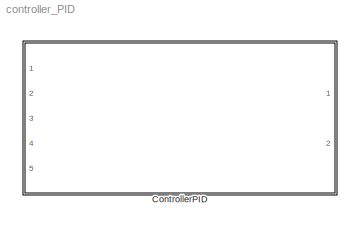
MODEL controller_PID
KIND model
CONFIG InitFcn = % load parameters of the default quadrotor\ndisp('Quadrotor parameters loaded by InitFcn')\nmdl_quadrotor
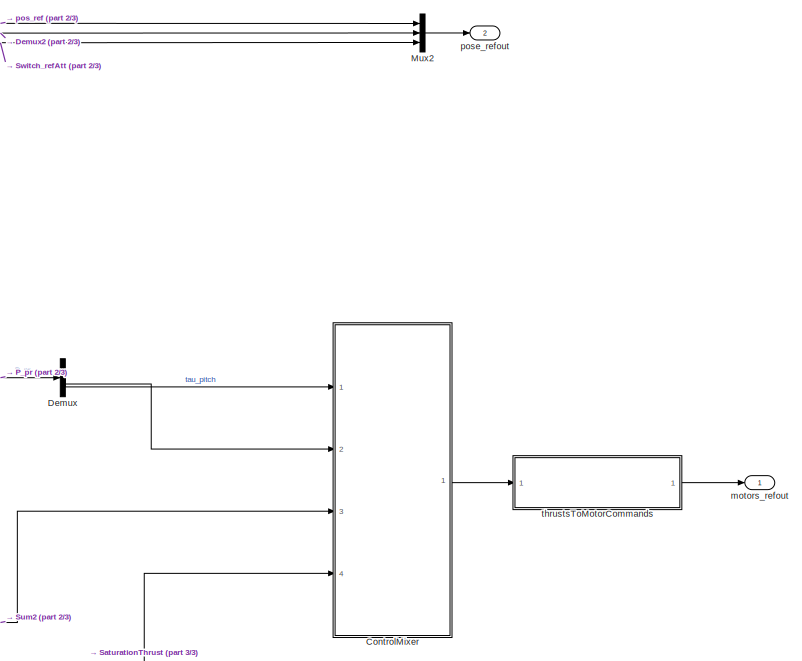
[diagram: ControllerPID - part 1/3, middle right region]
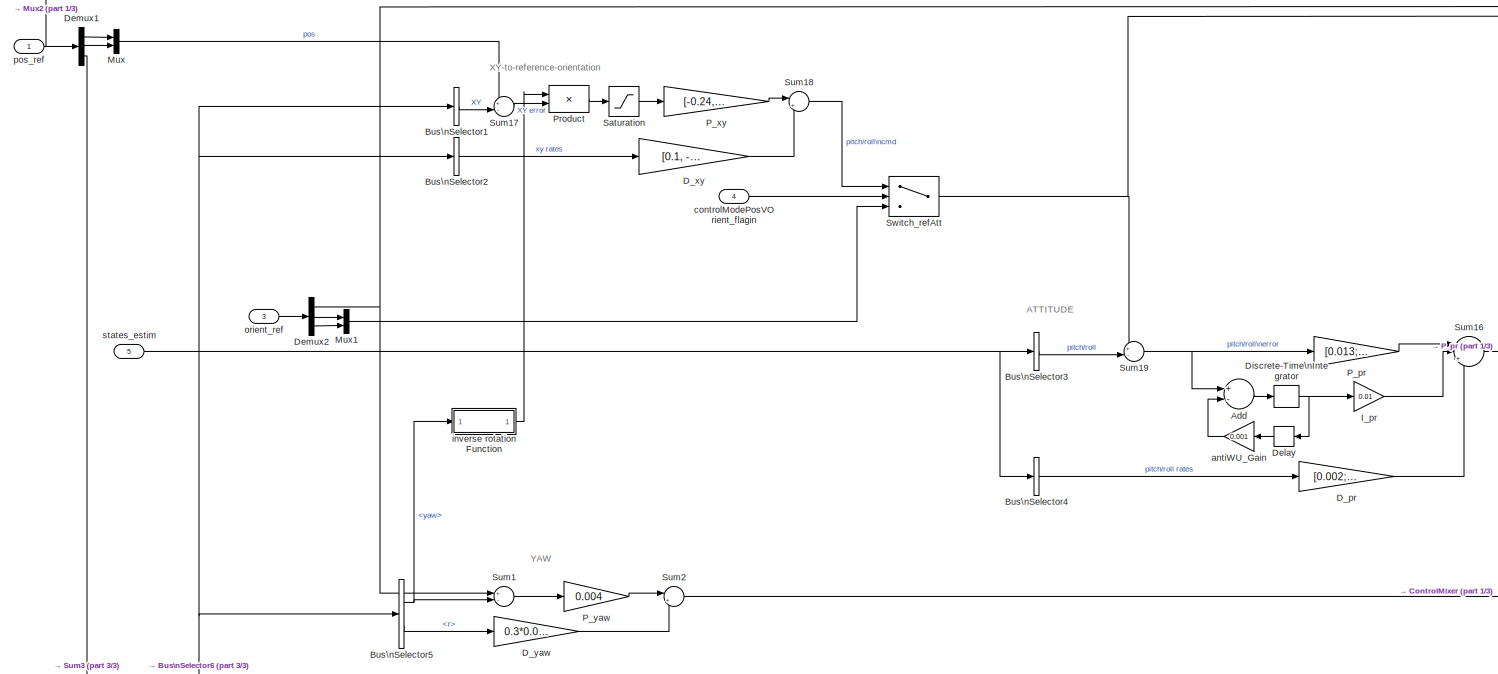
[diagram: ControllerPID - part 2/3, middle left region]
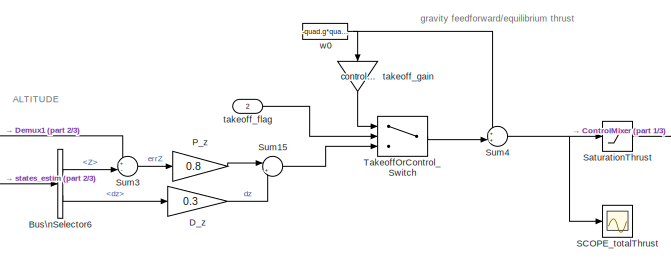
[diagram: ControllerPID - part 3/3, bottom left region]
BLOCK [SubSystem] ControllerPID
  Ports = [5, 2]
  RTWSystemCode = Reusable function
  RequestExecContextInheritance = off
  SID = 5863
  TreatAsAtomicUnit = on
BLOCK [Sum] ControllerPID/Add
  InputSameDT = off
  Inputs = +-
  OutDataTypeStr = Inherit: Inherit via internal rule
  Ports = [2, 1]
  SID = 5869
  SaturateOnIntegerOverflow = off
BLOCK [BusSelector] ControllerPID/Bus\nSelector1
  OutputAsBus = on
  OutputSignals = X,Y
  Ports = [1, 1]
  SID = 5870
BLOCK [BusSelector] ControllerPID/Bus\nSelector2
  OutputAsBus = on
  OutputSignals = dx,dy
  Ports = [1, 1]
  SID = 5871
BLOCK [BusSelector] ControllerPID/Bus\nSelector3
  OutputAsBus = on
  OutputSignals = pitch,roll
  Ports = [1, 1]
  SID = 5872
BLOCK [BusSelector] ControllerPID/Bus\nSelector4
  OutputAsBus = on
  OutputSignals = q,p
  Ports = [1, 1]
  SID = 5873
BLOCK [BusSelector] ControllerPID/Bus\nSelector5
  OutputSignals = yaw,r
  Ports = [1, 2]
  SID = 5874
BLOCK [BusSelector] ControllerPID/Bus\nSelector6
  OutputSignals = Z,dz
  Ports = [1, 2]
  SID = 5875
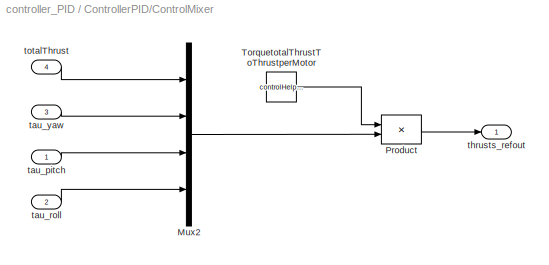
BLOCK [SubSystem] ControllerPID/ControlMixer
  Ports = [4, 1]
  RequestExecContextInheritance = off
  SID = 5876
BLOCK [Mux] ControllerPID/ControlMixer/Mux2
  DisplayOption = bar
  Ports = [4, 1]
  SID = 5881
BLOCK [Product] ControllerPID/ControlMixer/Product
  InputSameDT = off
  Multiplication = Matrix(*)
  OutDataTypeStr = Inherit: Inherit via internal rule
  Ports = [2, 1]
  SID = 5882
  SaturateOnIntegerOverflow = off
BLOCK [Constant] ControllerPID/ControlMixer/TorquetotalThrustToThrustperMotor
  SID = 5883
  Value = controlHelperParams.Q2Ts
BLOCK [Inport] ControllerPID/ControlMixer/tau_pitch
  IconDisplay = Port number
  SID = 5877
BLOCK [Inport] ControllerPID/ControlMixer/tau_roll
  IconDisplay = Port number
  Port = 2
  SID = 5878
BLOCK [Inport] ControllerPID/ControlMixer/tau_yaw
  IconDisplay = Port number
  Port = 3
  SID = 5879
BLOCK [Outport] ControllerPID/ControlMixer/thrusts_refout
  IconDisplay = Port number
  SID = 5884
BLOCK [Inport] ControllerPID/ControlMixer/totalThrust
  IconDisplay = Port number
  Port = 4
  SID = 5880
BLOCK [Gain] ControllerPID/D_pr
  Gain = [0.002;0.003]
  OutDataTypeStr = Inherit: Inherit via internal rule
  ParamDataTypeStr = Inherit: Inherit via internal rule
  SID = 5885
  SaturateOnIntegerOverflow = off
BLOCK [Gain] ControllerPID/D_xy
  Gain = [0.1, -0.1]
  OutDataTypeStr = Inherit: Inherit via internal rule
  ParamDataTypeStr = Inherit: Inherit via internal rule
  SID = 5886
  SaturateOnIntegerOverflow = off
BLOCK [Gain] ControllerPID/D_yaw
  Gain = 0.3*0.004
  OutDataTypeStr = Inherit: Inherit via internal rule
  ParamDataTypeStr = Inherit: Inherit via internal rule
  SID = 5887
  SaturateOnIntegerOverflow = off
BLOCK [Gain] ControllerPID/D_z
  Gain = 0.3
  OutDataTypeStr = Inherit: Inherit via internal rule
  ParamDataTypeStr = Inherit: Inherit via internal rule
  SID = 5888
  SaturateOnIntegerOverflow = off
BLOCK [Delay] ControllerPID/Delay
  DelayLength = 1
  InitialCondition = 0
  InputPortMap = u0
  Ports = [1, 1]
  SID = 5889
BLOCK [Demux] ControllerPID/Demux
  DisplayOption = bar
  Outputs = 2
  Ports = [1, 2]
  SID = 5890
BLOCK [Demux] ControllerPID/Demux1
  DisplayOption = bar
  Outputs = 3
  Ports = [1, 3]
  SID = 5891
BLOCK [Demux] ControllerPID/Demux2
  DisplayOption = bar
  Outputs = 3
  Ports = [1, 3]
  SID = 5892
BLOCK [DiscreteIntegrator] ControllerPID/Discrete-Time\nIntegrator
  InitialConditionSetting = State (most efficient)
  LimitOutput = on
  LowerSaturationLimit = -2
  Ports = [1, 1]
  SID = 5893
  SampleTime = quadEDT.sampletime
  UpperSaturationLimit = 2
BLOCK [Gain] ControllerPID/I_pr
  Gain = 0.01
  OutDataTypeStr = Inherit: Inherit via internal rule
  ParamDataTypeStr = Inherit: Inherit via internal rule
  SID = 5894
  SaturateOnIntegerOverflow = off
BLOCK [Mux] ControllerPID/Mux
  DisplayOption = bar
  Inputs = 2
  Ports = [2, 1]
  SID = 5895
BLOCK [Mux] ControllerPID/Mux1
  DisplayOption = bar
  Inputs = 2
  Ports = [2, 1]
  SID = 5896
BLOCK [Mux] ControllerPID/Mux2
  DisplayOption = bar
  Inputs = 3
  Ports = [3, 1]
  SID = 5897
BLOCK [Gain] ControllerPID/P_pr
  Gain = [0.013;0.02]
  OutDataTypeStr = Inherit: Inherit via internal rule
  ParamDataTypeStr = Inherit: Inherit via internal rule
  SID = 5898
  SaturateOnIntegerOverflow = off
BLOCK [Gain] ControllerPID/P_xy
  Gain = [-0.24,0.24]
  OutDataTypeStr = Inherit: Inherit via internal rule
  ParamDataTypeStr = Inherit: Inherit via internal rule
  SID = 5899
  SaturateOnIntegerOverflow = off
BLOCK [Gain] ControllerPID/P_yaw
  Gain = 0.004
  OutDataTypeStr = Inherit: Inherit via internal rule
  ParamDataTypeStr = Inherit: Inherit via internal rule
  SID = 5900
  SaturateOnIntegerOverflow = off
BLOCK [Gain] ControllerPID/P_z
  Gain = 0.8
  OutDataTypeStr = Inherit: Inherit via internal rule
  ParamDataTypeStr = Inherit: Inherit via internal rule
  SID = 5901
  SaturateOnIntegerOverflow = off
BLOCK [Product] ControllerPID/Product
  InputSameDT = off
  Multiplication = Matrix(*)
  OutDataTypeStr = Inherit: Inherit via internal rule
  Ports = [2, 1]
  SID = 5902
  SaturateOnIntegerOverflow = off
BLOCK [Scope] ControllerPID/SCOPE_totalThrust
  DataFormat = StructureWithTime
  Floating = off
  NumInputPorts = 1
  Ports = [1]
  SID = 5903
  SampleTime = 0
  SaveName = ScopeData15
  YMax = 0.045
  YMin = -0.04
  ZoomMode = yonly
BLOCK [Saturate] ControllerPID/Saturation
  InputPortMap = u0
  LowerLimit = -3
  Ports = [1, 1]
  SID = 5904
  UpperLimit = 3
BLOCK [Saturate] ControllerPID/SaturationThrust
  InputPortMap = u0
  LowerLimit = -4*controlHelperParams.totalThrust_maxRelative*controlHelperParams.motorsThrustperMotor_max
  Ports = [1, 1]
  SID = 5905
  UpperLimit = 4*controlHelperParams.totalThrust_maxRelative*controlHelperParams.motorsThrustperMotor_max
BLOCK [Sum] ControllerPID/Sum1
  IconShape = round
  InputSameDT = off
  Inputs = +-|
  OutDataTypeStr = Inherit: Inherit via internal rule
  Ports = [2, 1]
  SID = 5906
  SaturateOnIntegerOverflow = off
BLOCK [Sum] ControllerPID/Sum15
  IconShape = round
  InputSameDT = off
  Inputs = |+-
  OutDataTypeStr = Inherit: Inherit via internal rule
  Ports = [2, 1]
  SID = 5907
  SaturateOnIntegerOverflow = off
BLOCK [Sum] ControllerPID/Sum16
  IconShape = round
  InputSameDT = off
  Inputs = ||++-
  OutDataTypeStr = Inherit: Inherit via internal rule
  Ports = [3, 1]
  SID = 5908
  SaturateOnIntegerOverflow = off
BLOCK [Sum] ControllerPID/Sum17
  IconShape = round
  InputSameDT = off
  Inputs = +-|
  OutDataTypeStr = Inherit: Inherit via internal rule
  Ports = [2, 1]
  SID = 5909
  SaturateOnIntegerOverflow = off
BLOCK [Sum] ControllerPID/Sum18
  IconShape = round
  InputSameDT = off
  Inputs = |++
  OutDataTypeStr = Inherit: Inherit via internal rule
  Ports = [2, 1]
  SID = 5910
  SaturateOnIntegerOverflow = off
BLOCK [Sum] ControllerPID/Sum19
  IconShape = round
  InputSameDT = off
  Inputs = +-|
  OutDataTypeStr = Inherit: Inherit via internal rule
  Ports = [2, 1]
  SID = 5911
  SaturateOnIntegerOverflow = off
BLOCK [Sum] ControllerPID/Sum2
  IconShape = round
  InputSameDT = off
  Inputs = |+-
  OutDataTypeStr = Inherit: Inherit via internal rule
  Ports = [2, 1]
  SID = 5912
  SaturateOnIntegerOverflow = off
BLOCK [Sum] ControllerPID/Sum3
  IconShape = round
  InputSameDT = off
  Inputs = +-|
  OutDataTypeStr = Inherit: Inherit via internal rule
  Ports = [2, 1]
  SID = 5913
  SaturateOnIntegerOverflow = off
BLOCK [Sum] ControllerPID/Sum4
  IconShape = round
  InputSameDT = off
  Inputs = ++|
  OutDataTypeStr = Inherit: Inherit via internal rule
  Ports = [2, 1]
  SID = 5914
  SaturateOnIntegerOverflow = off
BLOCK [Switch] ControllerPID/Switch_refAtt
  Criteria = u2 > Threshold
  InputSameDT = off
  SID = 5915
  SaturateOnIntegerOverflow = off
BLOCK [Switch] ControllerPID/TakeoffOrControl_Switch
  Criteria = u2 > Threshold
  InputSameDT = off
  SID = 5916
  SaturateOnIntegerOverflow = off
BLOCK [Gain] ControllerPID/antiWU_Gain
  Gain = 0.001
  OutDataTypeStr = Inherit: Inherit via internal rule
  ParamDataTypeStr = Inherit: Inherit via internal rule
  SID = 5917
  SaturateOnIntegerOverflow = off
BLOCK [Inport] ControllerPID/controlModePosVOrient_flagin
  IconDisplay = Port number
  Port = 4
  SID = 5867
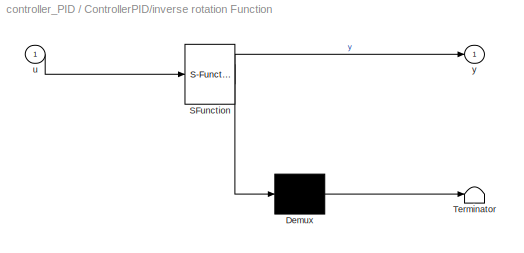
BLOCK [SubSystem] ControllerPID/inverse rotation Function
  ErrorFcn = Stateflow.Translate.translate
  PermitHierarchicalResolution = ExplicitOnly
  Ports = [1, 1]
  RequestExecContextInheritance = off
  SFBlockType = MATLAB Function
  SID = 5918
  TreatAsAtomicUnit = on
BLOCK [Demux] ControllerPID/inverse rotation Function/ Demux 
  Outputs = 1
  Ports = [1, 1]
  SID = 5918::20
BLOCK [S-Function] ControllerPID/inverse rotation Function/ SFunction 
  EnableBusSupport = on
  FunctionName = sf_sfun
  PortCounts = [1 2]
  Ports = [1, 2]
  SID = 5918::19
  Tag = Stateflow S-Function controller_PID 2
BLOCK [Terminator] ControllerPID/inverse rotation Function/ Terminator 
  SID = 5918::21
BLOCK [Inport] ControllerPID/inverse rotation Function/u
  IconDisplay = Port number
  SID = 5918::1
BLOCK [Outport] ControllerPID/inverse rotation Function/y
  IconDisplay = Port number
  SID = 5918::5
BLOCK [Outport] ControllerPID/motors_refout
  IconDisplay = Port number
  SID = 5927
BLOCK [Inport] ControllerPID/orient_ref
  IconDisplay = Port number
  Port = 3
  SID = 5866
BLOCK [Inport] ControllerPID/pos_ref
  IconDisplay = Port number
  SID = 5864
BLOCK [Outport] ControllerPID/pose_refout
  IconDisplay = Port number
  Port = 2
  SID = 5928
BLOCK [Inport] ControllerPID/states_estim
  IconDisplay = Port number
  Port = 5
  SID = 5868
BLOCK [Inport] ControllerPID/takeoff_flag
  IconDisplay = Port number
  Port = 2
  SID = 5865
BLOCK [Gain] ControllerPID/takeoff_gain
  Gain = controlHelperParams.takeoff_gain
  OutDataTypeStr = Inherit: Inherit via internal rule
  ParamDataTypeStr = Inherit: Inherit via internal rule
  SID = 5919
  SaturateOnIntegerOverflow = off
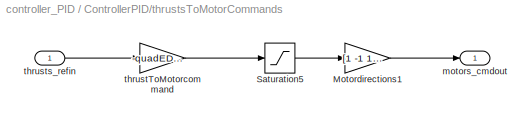
BLOCK [SubSystem] ControllerPID/thrustsToMotorCommands
  Ports = [1, 1]
  RequestExecContextInheritance = off
  SID = 5920
BLOCK [Gain] ControllerPID/thrustsToMotorCommands/Motordirections1
  Gain = [1 -1 1 -1]
  OutDataTypeStr = Inherit: Inherit via internal rule
  ParamDataTypeStr = Inherit: Inherit via internal rule
  SID = 5922
  SaturateOnIntegerOverflow = off
BLOCK [Saturate] ControllerPID/thrustsToMotorCommands/Saturation5
  InputPortMap = u0
  LowerLimit = 10
  Ports = [1, 1]
  SID = 5923
  UpperLimit = quadEDT.motors_max
BLOCK [Outport] ControllerPID/thrustsToMotorCommands/motors_cmdout
  IconDisplay = Port number
  SID = 5925
BLOCK [Gain] ControllerPID/thrustsToMotorCommands/thrustToMotorcommand
  Gain = -quadEDT.thrustToMotorcommand
  OutDataTypeStr = Inherit: Inherit via internal rule
  ParamDataTypeStr = Inherit: Inherit via internal rule
  SID = 5924
  SaturateOnIntegerOverflow = off
BLOCK [Inport] ControllerPID/thrustsToMotorCommands/thrusts_refin
  IconDisplay = Port number
  SID = 5921
BLOCK [Constant] ControllerPID/w0
  SID = 5926
  SampleTime = quadEDT.sampletime
  Value = -quad.g*quad.M
ANNOTATION ControllerPID: \n \n ALTITUDE
ANNOTATION ControllerPID: \n \n XY-to-reference-orientation
ANNOTATION ControllerPID: \n \n ATTITUDE
ANNOTATION ControllerPID: \n \n YAW
ANNOTATION ControllerPID: gravity feedforward/equilibrium thrust
LINE ControllerPID/Add:1 -> ControllerPID/Discrete-Time\nIntegrator:1
LINE ControllerPID/Bus\nSelector1:1 -> ControllerPID/Sum17:2
LINE ControllerPID/Bus\nSelector2:1 -> ControllerPID/D_xy:1
LINE ControllerPID/Bus\nSelector3:1 -> ControllerPID/Sum19:2
LINE ControllerPID/Bus\nSelector4:1 -> ControllerPID/D_pr:1
NET ControllerPID/Bus\nSelector5:1 -> ControllerPID/Sum1:2, ControllerPID/inverse rotation Function:1
LINE ControllerPID/Bus\nSelector5:2 -> ControllerPID/D_yaw:1
LINE ControllerPID/Bus\nSelector6:1 -> ControllerPID/Sum3:2
LINE ControllerPID/Bus\nSelector6:2 -> ControllerPID/D_z:1
LINE ControllerPID/ControlMixer/Mux2:1 -> ControllerPID/ControlMixer/Product:2
LINE ControllerPID/ControlMixer/Product:1 -> ControllerPID/ControlMixer/thrusts_refout:1
LINE ControllerPID/ControlMixer/TorquetotalThrustToThrustperMotor:1 -> ControllerPID/ControlMixer/Product:1
LINE ControllerPID/ControlMixer/tau_pitch:1 -> ControllerPID/ControlMixer/Mux2:3
LINE ControllerPID/ControlMixer/tau_roll:1 -> ControllerPID/ControlMixer/Mux2:4
LINE ControllerPID/ControlMixer/tau_yaw:1 -> ControllerPID/ControlMixer/Mux2:2
LINE ControllerPID/ControlMixer/totalThrust:1 -> ControllerPID/ControlMixer/Mux2:1
LINE ControllerPID/ControlMixer:1 -> ControllerPID/thrustsToMotorCommands:1
LINE ControllerPID/D_pr:1 -> ControllerPID/Sum16:3
LINE ControllerPID/D_xy:1 -> ControllerPID/Sum18:2
LINE ControllerPID/D_yaw:1 -> ControllerPID/Sum2:2
LINE ControllerPID/D_z:1 -> ControllerPID/Sum15:2
LINE ControllerPID/Delay:1 -> ControllerPID/antiWU_Gain:1
LINE ControllerPID/Demux1:1 -> ControllerPID/Mux:1
LINE ControllerPID/Demux1:2 -> ControllerPID/Mux:2
LINE ControllerPID/Demux1:3 -> ControllerPID/Sum3:1
NET ControllerPID/Demux2:1 -> ControllerPID/Mux2:2, ControllerPID/Sum1:1
LINE ControllerPID/Demux2:2 -> ControllerPID/Mux1:1
LINE ControllerPID/Demux2:3 -> ControllerPID/Mux1:2
LINE ControllerPID/Demux:1 -> ControllerPID/ControlMixer:1
LINE ControllerPID/Demux:2 -> ControllerPID/ControlMixer:2
NET ControllerPID/Discrete-Time\nIntegrator:1 -> ControllerPID/Delay:1, ControllerPID/I_pr:1
LINE ControllerPID/I_pr:1 -> ControllerPID/Sum16:2
LINE ControllerPID/Mux1:1 -> ControllerPID/Switch_refAtt:3
LINE ControllerPID/Mux2:1 -> ControllerPID/pose_refout:1
LINE ControllerPID/Mux:1 -> ControllerPID/Sum17:1
LINE ControllerPID/P_pr:1 -> ControllerPID/Sum16:1
LINE ControllerPID/P_xy:1 -> ControllerPID/Sum18:1
LINE ControllerPID/P_yaw:1 -> ControllerPID/Sum2:1
LINE ControllerPID/P_z:1 -> ControllerPID/Sum15:1
LINE ControllerPID/Product:1 -> ControllerPID/Saturation:1
LINE ControllerPID/Saturation:1 -> ControllerPID/P_xy:1
LINE ControllerPID/SaturationThrust:1 -> ControllerPID/ControlMixer:4
LINE ControllerPID/Sum15:1 -> ControllerPID/TakeoffOrControl_Switch:3
LINE ControllerPID/Sum16:1 -> ControllerPID/Demux:1
LINE ControllerPID/Sum17:1 -> ControllerPID/Product:2
LINE ControllerPID/Sum18:1 -> ControllerPID/Switch_refAtt:1
NET ControllerPID/Sum19:1 -> ControllerPID/Add:1, ControllerPID/P_pr:1
LINE ControllerPID/Sum1:1 -> ControllerPID/P_yaw:1
LINE ControllerPID/Sum2:1 -> ControllerPID/ControlMixer:3
LINE ControllerPID/Sum3:1 -> ControllerPID/P_z:1
NET ControllerPID/Sum4:1 -> ControllerPID/SCOPE_totalThrust:1, ControllerPID/SaturationThrust:1
NET ControllerPID/Switch_refAtt:1 -> ControllerPID/Mux2:3, ControllerPID/Sum19:1
LINE ControllerPID/TakeoffOrControl_Switch:1 -> ControllerPID/Sum4:2
LINE ControllerPID/antiWU_Gain:1 -> ControllerPID/Add:2
LINE ControllerPID/controlModePosVOrient_flagin:1 -> ControllerPID/Switch_refAtt:2
LINE ControllerPID/inverse rotation Function/ Demux :1 -> ControllerPID/inverse rotation Function/ Terminator :1
LINE ControllerPID/inverse rotation Function/ SFunction :1 -> ControllerPID/inverse rotation Function/ Demux :1
LINE ControllerPID/inverse rotation Function/ SFunction :2 -> ControllerPID/inverse rotation Function/y:1
LINE ControllerPID/inverse rotation Function/u:1 -> ControllerPID/inverse rotation Function/ SFunction :1
LINE ControllerPID/inverse rotation Function:1 -> ControllerPID/Product:1
LINE ControllerPID/orient_ref:1 -> ControllerPID/Demux2:1
NET ControllerPID/pos_ref:1 -> ControllerPID/Demux1:1, ControllerPID/Mux2:1
NET ControllerPID/states_estim:1 -> ControllerPID/Bus\nSelector1:1, ControllerPID/Bus\nSelector2:1, ControllerPID/Bus\nSelector3:1, ControllerPID/Bus\nSelector4:1, ControllerPID/Bus\nSelector5:1, ControllerPID/Bus\nSelector6:1
LINE ControllerPID/takeoff_flag:1 -> ControllerPID/TakeoffOrControl_Switch:2
LINE ControllerPID/takeoff_gain:1 -> ControllerPID/TakeoffOrControl_Switch:1
LINE ControllerPID/thrustsToMotorCommands/Motordirections1:1 -> ControllerPID/thrustsToMotorCommands/motors_cmdout:1
LINE ControllerPID/thrustsToMotorCommands/Saturation5:1 -> ControllerPID/thrustsToMotorCommands/Motordirections1:1
LINE ControllerPID/thrustsToMotorCommands/thrustToMotorcommand:1 -> ControllerPID/thrustsToMotorCommands/Saturation5:1
LINE ControllerPID/thrustsToMotorCommands/thrusts_refin:1 -> ControllerPID/thrustsToMotorCommands/thrustToMotorcommand:1
LINE ControllerPID/thrustsToMotorCommands:1 -> ControllerPID/motors_refout:1
NET ControllerPID/w0:1 -> ControllerPID/Sum4:1, ControllerPID/takeoff_gain:1
note: NET lines group one-source signal fan-out (src -> all destinations, sorted); 1:1 wires keep LINE
CHART ControllerPID/inverse rotation Function states=1 transitions=1
  STATE_LABEL 'eML_blk_kernel()'
